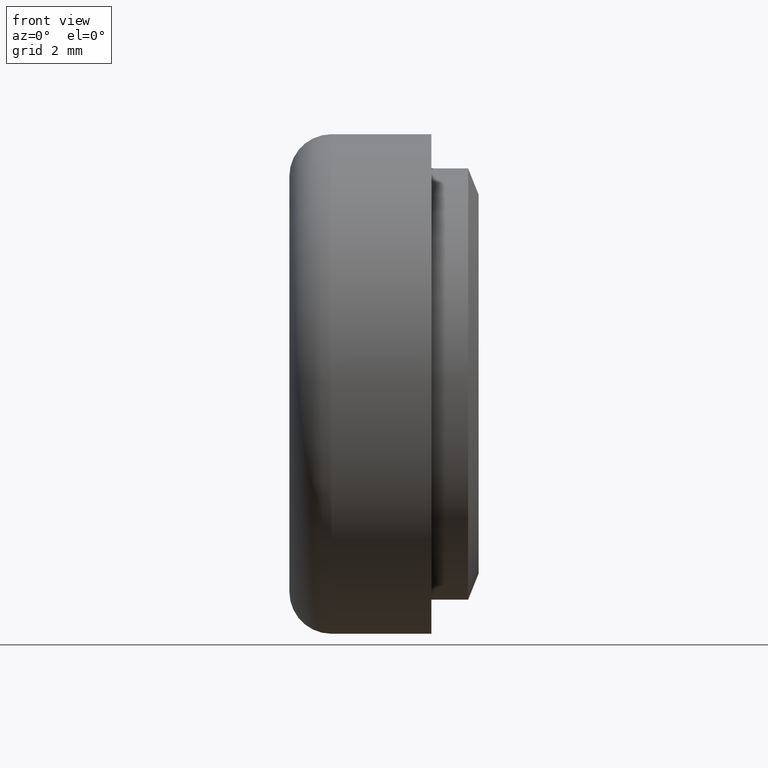
[diagram: clean part render]
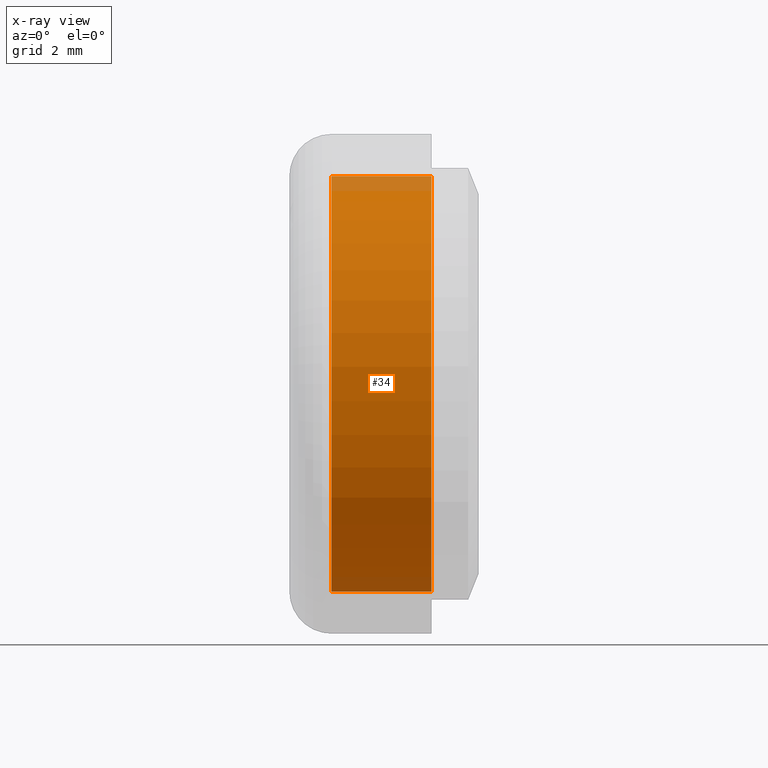
[diagram: x-ray — body ghosted, one internal face saturated and labeled with its STEP entity id]
A machine part, front view, then the same camera in x-ray: the body is ghosted and one INTERNAL B-rep face — a face not visible from any outside direction — is saturated and labeled: STEP entity #34.
In plain terms, the highlighted cylindrical surface (partial cylindrical patch) has radius 3.95 mm, axis along (-1, -0, -0).
Its self-contained STEP definition (entity closure, byte-faithful):
#11 = CARTESIAN_POINT ( 'NONE',  ( -88.98999999999999500, 4.837354856632044100E-016, -3.949999999999999700 ) ) ;
#27 = VECTOR ( 'NONE', #576, 1000.000000000000000 ) ;
#34 = ADVANCED_FACE ( 'NONE', ( #551 ), #710, .T. ) ;
#41 = DIRECTION ( 'NONE',  ( -1.000000000000000000, -0.0000000000000000000, -0.0000000000000000000 ) ) ;
#49 = CARTESIAN_POINT ( 'NONE',  ( 1.899999999999999000, 4.837354856632044100E-016, -3.949999999999999700 ) ) ;
#137 = CIRCLE ( 'NONE', #218, 3.949999999999999700 ) ;
#189 = VERTEX_POINT ( 'NONE', #49 ) ;
#192 = DIRECTION ( 'NONE',  ( -1.000000000000000000, -0.0000000000000000000, -0.0000000000000000000 ) ) ;
#218 = AXIS2_PLACEMENT_3D ( 'NONE', #357, #695, #635 ) ;
#222 = CIRCLE ( 'NONE', #617, 3.949999999999999700 ) ;
#241 = CARTESIAN_POINT ( 'NONE',  ( -88.98999999999999500, 0.0000000000000000000, 3.949999999999999700 ) ) ;
#256 = LINE ( 'NONE', #11, #521 ) ;
#300 = EDGE_CURVE ( 'NONE', #698, #450, #137, .T. ) ;
#309 = ORIENTED_EDGE ( 'NONE', *, *, #345, .F. ) ;
#334 = ORIENTED_EDGE ( 'NONE', *, *, #472, .T. ) ;
#342 = ORIENTED_EDGE ( 'NONE', *, *, #300, .F. ) ;
#345 = EDGE_CURVE ( 'NONE', #189, #698, #256, .T. ) ;
#357 = CARTESIAN_POINT ( 'NONE',  ( 0.0000000000000000000, 0.0000000000000000000, 0.0000000000000000000 ) ) ;
#375 = CARTESIAN_POINT ( 'NONE',  ( -88.98999999999999500, 0.0000000000000000000, 0.0000000000000000000 ) ) ;
#398 = EDGE_LOOP ( 'NONE', ( #309, #469, #334, #342 ) ) ;
#426 = EDGE_CURVE ( 'NONE', #189, #475, #222, .T. ) ;
#450 = VERTEX_POINT ( 'NONE', #562 ) ;
#469 = ORIENTED_EDGE ( 'NONE', *, *, #426, .T. ) ;
#472 = EDGE_CURVE ( 'NONE', #475, #450, #622, .T. ) ;
#475 = VERTEX_POINT ( 'NONE', #624 ) ;
#512 = CARTESIAN_POINT ( 'NONE',  ( 1.899999999999999000, 0.0000000000000000000, 0.0000000000000000000 ) ) ;
#519 = DIRECTION ( 'NONE',  ( -1.000000000000000000, -0.0000000000000000000, -0.0000000000000000000 ) ) ;
#521 = VECTOR ( 'NONE', #519, 1000.000000000000000 ) ;
#551 = FACE_OUTER_BOUND ( 'NONE', #398, .T. ) ;
#562 = CARTESIAN_POINT ( 'NONE',  ( 0.0000000000000000000, 0.0000000000000000000, 3.949999999999999700 ) ) ;
#569 = AXIS2_PLACEMENT_3D ( 'NONE', #375, #41, #717 ) ;
#573 = DIRECTION ( 'NONE',  ( 0.0000000000000000000, 0.0000000000000000000, 1.000000000000000000 ) ) ;
#574 = CARTESIAN_POINT ( 'NONE',  ( 0.0000000000000000000, 4.837354856632044100E-016, -3.949999999999999700 ) ) ;
#576 = DIRECTION ( 'NONE',  ( -1.000000000000000000, -0.0000000000000000000, -0.0000000000000000000 ) ) ;
#617 = AXIS2_PLACEMENT_3D ( 'NONE', #512, #192, #573 ) ;
#622 = LINE ( 'NONE', #241, #27 ) ;
#624 = CARTESIAN_POINT ( 'NONE',  ( 1.899999999999999000, 0.0000000000000000000, 3.949999999999999700 ) ) ;
#635 = DIRECTION ( 'NONE',  ( 0.0000000000000000000, 0.0000000000000000000, 1.000000000000000000 ) ) ;
#695 = DIRECTION ( 'NONE',  ( -1.000000000000000000, -0.0000000000000000000, -0.0000000000000000000 ) ) ;
#698 = VERTEX_POINT ( 'NONE', #574 ) ;
#710 = CYLINDRICAL_SURFACE ( 'NONE', #569, 3.949999999999999700 ) ;
#717 = DIRECTION ( 'NONE',  ( 0.0000000000000000000, 0.0000000000000000000, 1.000000000000000000 ) ) ;